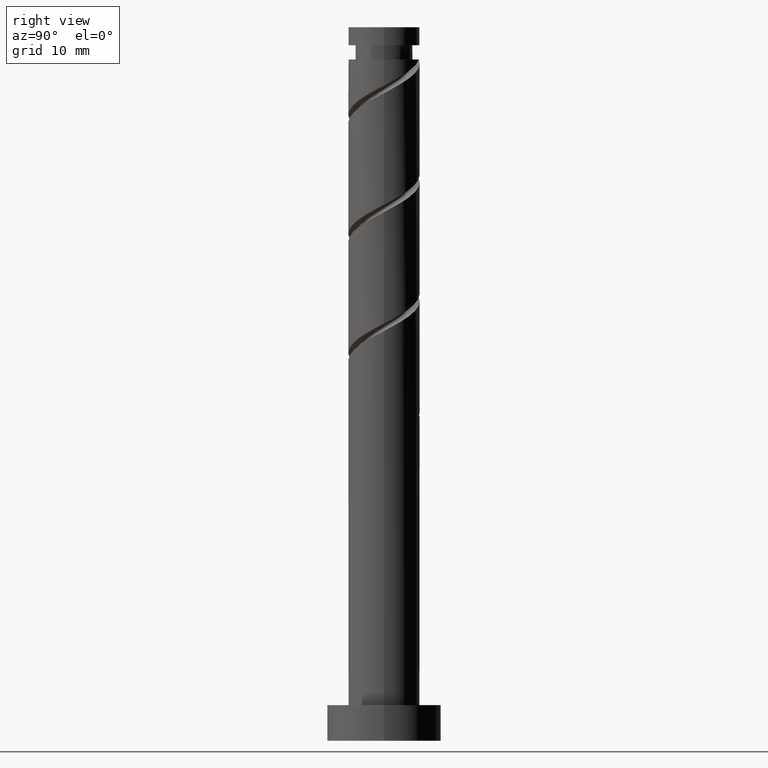
[diagram: clean part render]
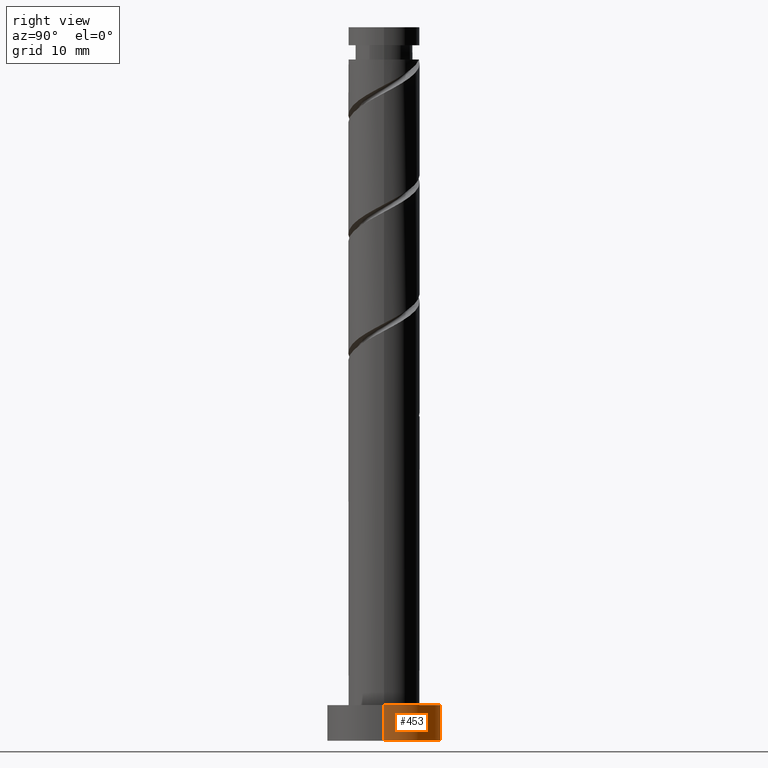
[diagram: same view with one face highlighted and labeled with its STEP entity id]
A machine part, right view. The second image highlights one B-rep face of the part: STEP entity #453.
In plain terms, the highlighted cylindrical surface (partial cylindrical patch) has radius 8 mm, axis along (-0, -0, -1).
Its self-contained STEP definition (entity closure, byte-faithful):
#67 = DIRECTION ( 'NONE',  ( 0.000000000000000000, 0.000000000000000000, 1.000000000000000000 ) ) ;
#107 = AXIS2_PLACEMENT_3D ( 'NONE', #326, #930, #1058 ) ;
#110 = CARTESIAN_POINT ( 'NONE',  ( -8.000000000000000000, 0.000000000000000000, 0.000000000000000000 ) ) ;
#118 = CYLINDRICAL_SURFACE ( 'NONE', #107, 8.000000000000000000 ) ;
#134 = EDGE_LOOP ( 'NONE', ( #903, #1073, #1205, #1213 ) ) ;
#214 = LINE ( 'NONE', #927, #587 ) ;
#270 = EDGE_CURVE ( 'NONE', #683, #890, #214, .T. ) ;
#283 = DIRECTION ( 'NONE',  ( 1.000000000000000000, 0.000000000000000000, 0.000000000000000000 ) ) ;
#320 = DIRECTION ( 'NONE',  ( 1.000000000000000000, 0.000000000000000000, 0.000000000000000000 ) ) ;
#326 = CARTESIAN_POINT ( 'NONE',  ( 0.000000000000000000, 0.000000000000000000, 5.000000000000000000 ) ) ;
#340 = CARTESIAN_POINT ( 'NONE',  ( 8.000000000000000000, 9.797174393178825657E-16, 0.000000000000000000 ) ) ;
#384 = CARTESIAN_POINT ( 'NONE',  ( 8.000000000000000000, 9.797174393178825657E-16, 5.000000000000000000 ) ) ;
#395 = VERTEX_POINT ( 'NONE', #340 ) ;
#400 = CARTESIAN_POINT ( 'NONE',  ( -8.000000000000000000, 0.000000000000000000, 5.000000000000000000 ) ) ;
#453 = ADVANCED_FACE ( 'NONE', ( #803 ), #118, .T. ) ;
#572 = CIRCLE ( 'NONE', #921, 8.000000000000000000 ) ;
#587 = VECTOR ( 'NONE', #1161, 1000.000000000000000 ) ;
#683 = VERTEX_POINT ( 'NONE', #400 ) ;
#695 = EDGE_CURVE ( 'NONE', #806, #683, #572, .T. ) ;
#737 = DIRECTION ( 'NONE',  ( -0.000000000000000000, -0.000000000000000000, -1.000000000000000000 ) ) ;
#803 = FACE_OUTER_BOUND ( 'NONE', #134, .T. ) ;
#806 = VERTEX_POINT ( 'NONE', #384 ) ;
#808 = EDGE_CURVE ( 'NONE', #806, #395, #861, .T. ) ;
#861 = LINE ( 'NONE', #1317, #1415 ) ;
#890 = VERTEX_POINT ( 'NONE', #110 ) ;
#901 = DIRECTION ( 'NONE',  ( 0.000000000000000000, 0.000000000000000000, 1.000000000000000000 ) ) ;
#903 = ORIENTED_EDGE ( 'NONE', *, *, #695, .F. ) ;
#921 = AXIS2_PLACEMENT_3D ( 'NONE', #1237, #67, #283 ) ;
#927 = CARTESIAN_POINT ( 'NONE',  ( -8.000000000000000000, 0.000000000000000000, 5.000000000000000000 ) ) ;
#930 = DIRECTION ( 'NONE',  ( -0.000000000000000000, -0.000000000000000000, -1.000000000000000000 ) ) ;
#1002 = CARTESIAN_POINT ( 'NONE',  ( 0.000000000000000000, 0.000000000000000000, 0.000000000000000000 ) ) ;
#1058 = DIRECTION ( 'NONE',  ( -1.000000000000000000, 0.000000000000000000, 0.000000000000000000 ) ) ;
#1073 = ORIENTED_EDGE ( 'NONE', *, *, #808, .T. ) ;
#1161 = DIRECTION ( 'NONE',  ( -0.000000000000000000, -0.000000000000000000, -1.000000000000000000 ) ) ;
#1205 = ORIENTED_EDGE ( 'NONE', *, *, #1291, .T. ) ;
#1213 = ORIENTED_EDGE ( 'NONE', *, *, #270, .F. ) ;
#1237 = CARTESIAN_POINT ( 'NONE',  ( 0.000000000000000000, 0.000000000000000000, 5.000000000000000000 ) ) ;
#1273 = AXIS2_PLACEMENT_3D ( 'NONE', #1002, #901, #320 ) ;
#1291 = EDGE_CURVE ( 'NONE', #395, #890, #1370, .T. ) ;
#1317 = CARTESIAN_POINT ( 'NONE',  ( 8.000000000000000000, 9.797174393178825657E-16, 5.000000000000000000 ) ) ;
#1370 = CIRCLE ( 'NONE', #1273, 8.000000000000000000 ) ;
#1415 = VECTOR ( 'NONE', #737, 1000.000000000000000 ) ;